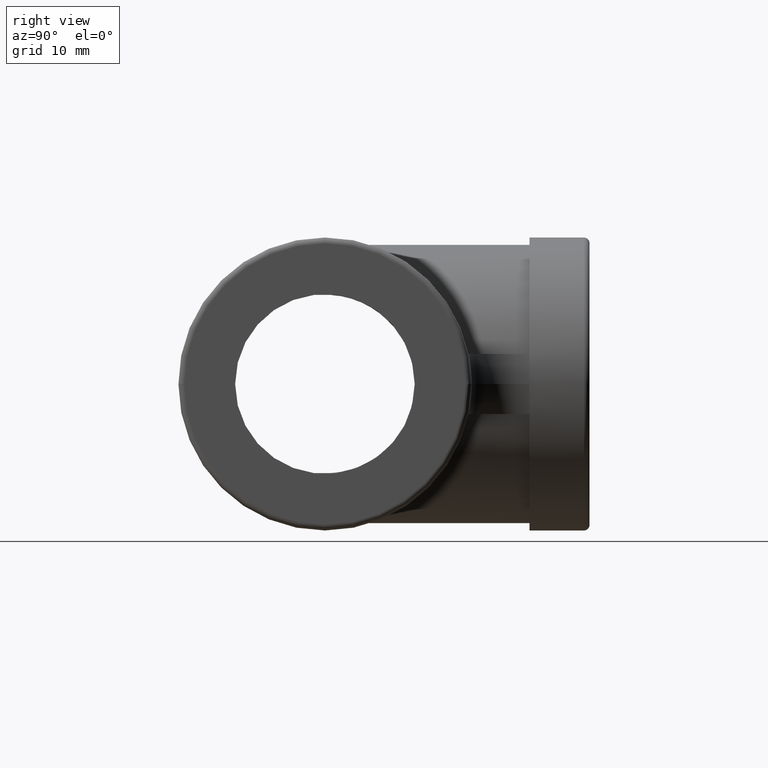
[diagram: clean part render]
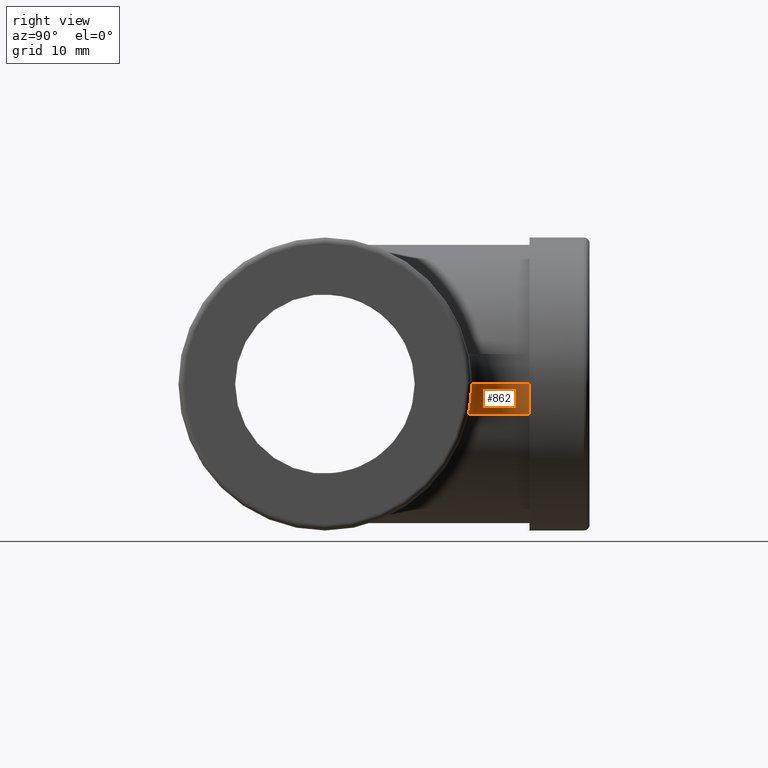
[diagram: same view with one face highlighted and labeled with its STEP entity id]
A machine part, right view. The second image highlights one B-rep face of the part: STEP entity #862.
In plain terms, the highlighted toroidal blend (fillet) surface has major radius 21.65 mm and minor (blend) radius 15.5 mm.
Its self-contained STEP definition (entity closure, byte-faithful):
#53 = CIRCLE ( 'NONE', #367, 6.150000000000058087 ) ;
#58 = CARTESIAN_POINT ( 'NONE',  ( 21.65000000000005542, 15.17133398880921291, -3.174999999999999378 ) ) ;
#119 = EDGE_CURVE ( 'NONE', #609, #1242, #53, .T. ) ;
#127 = CARTESIAN_POINT ( 'NONE',  ( 0.000000000000000000, 21.65000000000000213, 0.000000000000000000 ) ) ;
#128 = VERTEX_POINT ( 'NONE', #58 ) ;
#205 = DIRECTION ( 'NONE',  ( 1.000000000000000000, 0.000000000000000000, 0.000000000000000000 ) ) ;
#214 = CARTESIAN_POINT ( 'NONE',  ( 21.65000000000005898, 15.49999999999992362, -1.898202538678397557E-15 ) ) ;
#262 = AXIS2_PLACEMENT_3D ( 'NONE', #127, #440, #323 ) ;
#279 = TOROIDAL_SURFACE ( 'NONE', #446, 21.65000000000005898, 15.50000000000000000 ) ;
#301 = ORIENTED_EDGE ( 'NONE', *, *, #119, .T. ) ;
#323 = DIRECTION ( 'NONE',  ( 0.000000000000000000, 0.000000000000000000, 1.000000000000000000 ) ) ;
#367 = AXIS2_PLACEMENT_3D ( 'NONE', #766, #877, #564 ) ;
#440 = DIRECTION ( 'NONE',  ( 0.000000000000000000, 1.000000000000000000, 0.000000000000000000 ) ) ;
#444 = VERTEX_POINT ( 'NONE', #959 ) ;
#446 = AXIS2_PLACEMENT_3D ( 'NONE', #855, #940, #655 ) ;
#519 = DIRECTION ( 'NONE',  ( 0.000000000000000000, 0.000000000000000000, 1.000000000000000000 ) ) ;
#564 = DIRECTION ( 'NONE',  ( 1.000000000000000000, 0.000000000000000000, 0.000000000000000000 ) ) ;
#573 = CIRCLE ( 'NONE', #907, 6.478666011190767904 ) ;
#584 = EDGE_LOOP ( 'NONE', ( #856, #301, #1065, #1187 ) ) ;
#609 = VERTEX_POINT ( 'NONE', #1176 ) ;
#655 = DIRECTION ( 'NONE',  ( 1.000000000000000000, 0.000000000000000000, 0.000000000000000000 ) ) ;
#723 = CARTESIAN_POINT ( 'NONE',  ( 21.65000000000005898, 21.64999999999998082, -3.174999999999999378 ) ) ;
#754 = FACE_OUTER_BOUND ( 'NONE', #584, .T. ) ;
#765 = EDGE_CURVE ( 'NONE', #444, #128, #573, .T. ) ;
#766 = CARTESIAN_POINT ( 'NONE',  ( 21.65000000000005898, 21.64999999999998082, -1.898202538678397557E-15 ) ) ;
#825 = CIRCLE ( 'NONE', #262, 15.50000000000000000 ) ;
#855 = CARTESIAN_POINT ( 'NONE',  ( 21.65000000000005898, 21.64999999999998082, 0.000000000000000000 ) ) ;
#856 = ORIENTED_EDGE ( 'NONE', *, *, #1275, .F. ) ;
#862 = ADVANCED_FACE ( 'NONE', ( #754 ), #279, .T. ) ;
#867 = CARTESIAN_POINT ( 'NONE',  ( 21.65000000000000213, -7.559057098595384661E-14, 0.000000000000000000 ) ) ;
#877 = DIRECTION ( 'NONE',  ( 0.000000000000000000, 0.000000000000000000, 1.000000000000000000 ) ) ;
#907 = AXIS2_PLACEMENT_3D ( 'NONE', #723, #519, #205 ) ;
#940 = DIRECTION ( 'NONE',  ( 0.000000000000000000, 0.000000000000000000, 1.000000000000000000 ) ) ;
#953 = CIRCLE ( 'NONE', #1064, 15.50000000000000000 ) ;
#959 = CARTESIAN_POINT ( 'NONE',  ( 15.17133398880928929, 21.65000000000000213, -3.174999999999999378 ) ) ;
#1064 = AXIS2_PLACEMENT_3D ( 'NONE', #867, #1079, #1186 ) ;
#1065 = ORIENTED_EDGE ( 'NONE', *, *, #1078, .T. ) ;
#1078 = EDGE_CURVE ( 'NONE', #1242, #128, #953, .T. ) ;
#1079 = DIRECTION ( 'NONE',  ( -1.000000000000000000, 3.491483361109382066E-15, 0.000000000000000000 ) ) ;
#1176 = CARTESIAN_POINT ( 'NONE',  ( 15.50000000000000000, 21.65000000000000213, -1.898202538678397557E-15 ) ) ;
#1186 = DIRECTION ( 'NONE',  ( -3.581364595565021073E-15, -1.000000000000000000, 0.000000000000000000 ) ) ;
#1187 = ORIENTED_EDGE ( 'NONE', *, *, #765, .F. ) ;
#1242 = VERTEX_POINT ( 'NONE', #214 ) ;
#1275 = EDGE_CURVE ( 'NONE', #609, #444, #825, .T. ) ;